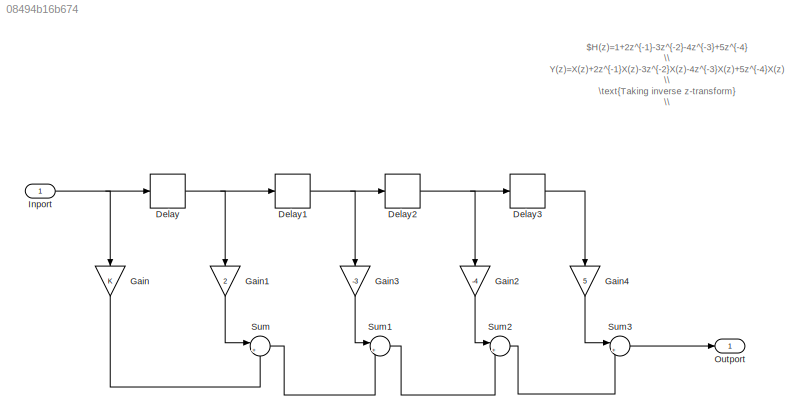
MODEL slx_08494b16b674
KIND model
CONFIG AbsTol = auto
CONFIG EnableMultiTasking = off
CONFIG FixedStep = 0.2
CONFIG MaxStep = auto
CONFIG MinStep = auto
CONFIG RelTol = 1e-3
CONFIG SampleTimeConstraint = Unconstrained
CONFIG SolverName = FixedStepAuto
CONFIG StartTime = 0.0
CONFIG StopTime = 10.0
BLOCK [Delay] Delay
  DelayLength = 1
  InputPortMap = u0
  Ports = [1, 1]
BLOCK [Delay] Delay1
  DelayLength = 1
  InputPortMap = u0
  Ports = [1, 1]
BLOCK [Delay] Delay2
  DelayLength = 1
  InputPortMap = u0
  Ports = [1, 1]
BLOCK [Delay] Delay3
  DelayLength = 1
  InputPortMap = u0
  Ports = [1, 1]
BLOCK [Gain] Gain
  NameLocation = left
BLOCK [Gain] Gain1
  Gain = 2
  NameLocation = left
BLOCK [Gain] Gain2
  Gain = -4
  NameLocation = left
BLOCK [Gain] Gain3
  Gain = -3
  NameLocation = left
BLOCK [Gain] Gain4
  Gain = 5
  NameLocation = left
BLOCK [Inport] Inport
  OutDataTypeStr = double
  PortDimensions = 1
  SampleTime = [0.20000000000000001,0]
  SamplingMode = Sample based
  SignalType = real
BLOCK [Outport] Outport
  OutDataTypeStr = double
  PortDimensions = 1
  SampleTime = [0.20000000000000001,0]
  SamplingMode = Sample based
  SignalType = real
BLOCK [Sum] Sum
  Inputs = |++
  Ports = [2, 1]
BLOCK [Sum] Sum1
  Inputs = |++
  Ports = [2, 1]
BLOCK [Sum] Sum2
  Inputs = |++
  Ports = [2, 1]
BLOCK [Sum] Sum3
  Inputs = |++
  Ports = [2, 1]
ANNOTATION (root): $H(z)=1+2z^{-1}-3z^{-2}-4z^{-3}+5z^{-4} \\ Y(z)=X(z)+2z^{-1}X(z)-3z^{-2}X(z)-4z^{-3}X(z)+5z^{-4}X(z) \\ \text{Taking inverse z-transform} \\ y(n)=x(n)+2x(n-1)-3x(n-2)-4x(n-3)+5x(n-4)$
NET Delay1:1 -> Delay2:1, Gain3:1
NET Delay2:1 -> Delay3:1, Gain2:1
LINE Delay3:1 -> Gain4:1
NET Delay:1 -> Delay1:1, Gain1:1
LINE Gain1:1 -> Sum:1
LINE Gain2:1 -> Sum2:1
LINE Gain3:1 -> Sum1:1
LINE Gain4:1 -> Sum3:1
LINE Gain:1 -> Sum:2
NET Inport:1 -> Delay:1, Gain:1
LINE Sum1:1 -> Sum2:2
LINE Sum2:1 -> Sum3:2
LINE Sum3:1 -> Outport:1
LINE Sum:1 -> Sum1:2
note: NET lines group one-source signal fan-out (src -> all destinations, sorted); 1:1 wires keep LINE
